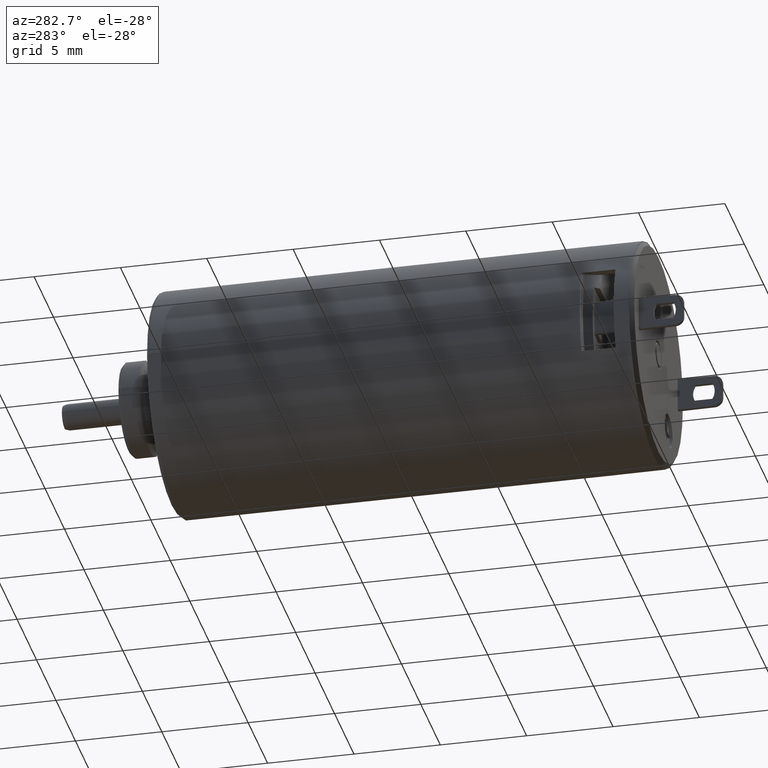
[diagram: clean part render]
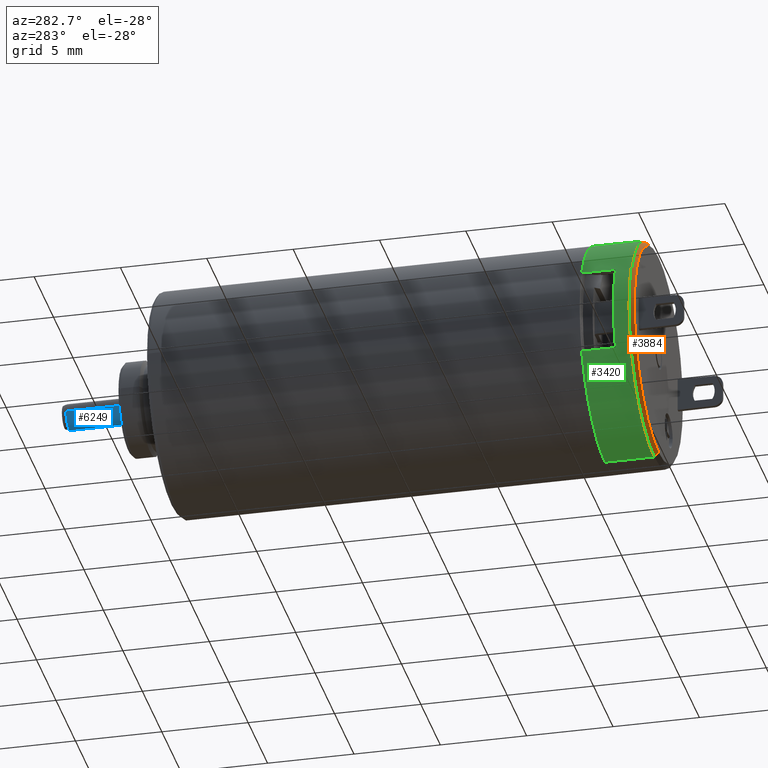
[diagram: same view with three faces highlighted in distinct colors, each labeled with its STEP entity id]
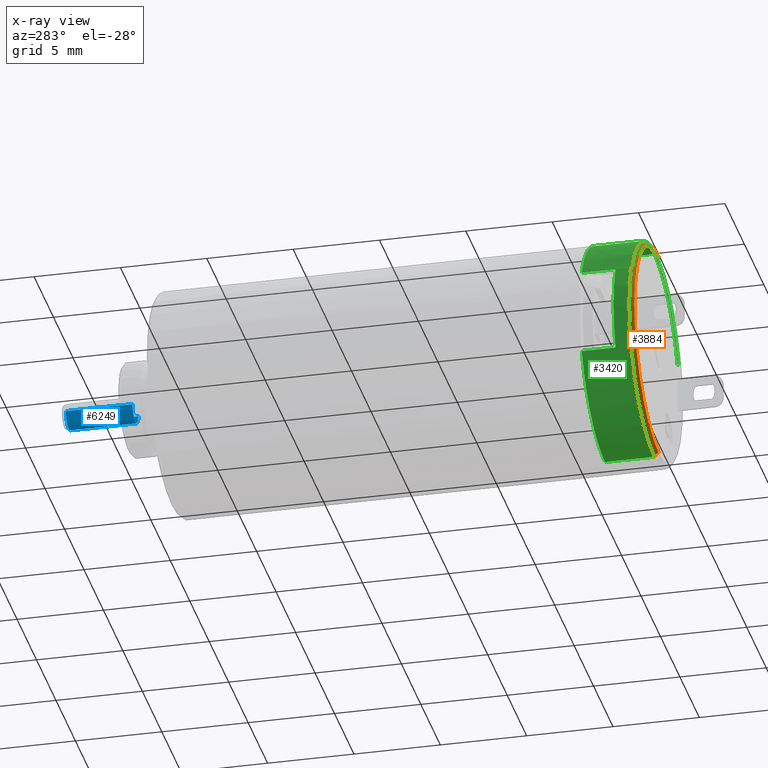
[diagram: x-ray of the same camera — body ghosted, the three highlighted faces saturated]
A machine part, auxiliary view with three faces highlighted in distinct colors.
The next image is the same camera in x-ray (body ghosted, the three faces saturated) — at least one of them is partly hidden behind the body in this view.
Their STEP definitions:

[orange] entity #3884 — the highlighted conical surface has half-angle 46.79 deg.
#597=CARTESIAN_POINT('',(0.E0,-3.44E1,0.E0));
#598=DIRECTION('',(0.E0,-1.E0,0.E0));
#599=DIRECTION('',(0.E0,0.E0,1.E0));
#600=AXIS2_PLACEMENT_3D('',#597,#598,#599);
#617=CARTESIAN_POINT('',(0.E0,-3.42E1,0.E0));
#618=DIRECTION('',(0.E0,1.E0,0.E0));
#619=DIRECTION('',(-9.215546591161E-1,0.E0,3.882486448932E-1));
#620=AXIS2_PLACEMENT_3D('',#617,#618,#619);
#622=CARTESIAN_POINT('',(0.E0,-3.415E1,0.E0));
#623=DIRECTION('',(0.E0,-1.E0,0.E0));
#624=DIRECTION('',(-9.229530266967E-1,0.E0,3.849126011334E-1));
#625=AXIS2_PLACEMENT_3D('',#622,#623,#624);
#627=CARTESIAN_POINT('',(-5.936446798026E0,-3.42E1,2.501010007399E0));
#628=CARTESIAN_POINT('',(-5.942873613894E0,-3.419451083336E1,2.500805681850E0));
#629=CARTESIAN_POINT('',(-5.955749284419E0,-3.418348790205E1,2.500458364662E0));
#630=CARTESIAN_POINT('',(-5.975133783294E0,-3.416681540997E1,2.500123178279E0));
#631=CARTESIAN_POINT('',(-5.988091529926E0,-3.415561914746E1,2.500024928229E0));
#632=CARTESIAN_POINT('',(-5.994579908395E0,-3.415E1,2.500007344362E0));
#1935=DIRECTION('',(0.E0,-6.846738080152E-1,7.288496255182E-1));
#1936=VECTOR('',#1935,3.651373793964E-1);
#1937=CARTESIAN_POINT('',(0.E0,-3.415E1,-6.495E0));
#1938=LINE('',#1937,#1936);
#1939=DIRECTION('',(0.E0,-6.846738080152E-1,-7.288496255182E-1));
#1940=VECTOR('',#1939,2.921099035171E-1);
#1941=CARTESIAN_POINT('',(0.E0,-3.42E1,6.441773951553E0));
#1942=LINE('',#1941,#1940);
#2735=CARTESIAN_POINT('',(0.E0,-3.415E1,-6.495E0));
#2736=CARTESIAN_POINT('',(0.E0,-3.44E1,-6.228869757764E0));
#2737=VERTEX_POINT('',#2735);
#2738=VERTEX_POINT('',#2736);
#2739=CARTESIAN_POINT('',(0.E0,-3.44E1,6.228869757764E0));
#2740=VERTEX_POINT('',#2739);
#2780=CARTESIAN_POINT('',(-5.936446798026E0,-3.42E1,2.501010007399E0));
#2782=VERTEX_POINT('',#2780);
#2787=CARTESIAN_POINT('',(0.E0,-3.42E1,6.441773951553E0));
#2788=VERTEX_POINT('',#2787);
#2789=VERTEX_POINT('',#632);
#3867=CARTESIAN_POINT('',(0.E0,-3.4275E1,0.E0));
#3868=DIRECTION('',(0.E0,1.E0,0.E0));
#3869=DIRECTION('',(0.E0,0.E0,-1.E0));
#3870=AXIS2_PLACEMENT_3D('',#3867,#3868,#3869);
#3871=CONICAL_SURFACE('',#3870,6.361934878882E0,4.679004060379E1);
#3873=ORIENTED_EDGE('',*,*,#3872,.T.);
#3875=ORIENTED_EDGE('',*,*,#3874,.T.);
#3876=ORIENTED_EDGE('',*,*,#3830,.T.);
#3878=ORIENTED_EDGE('',*,*,#3877,.F.);
#3879=ORIENTED_EDGE('',*,*,#3402,.F.);
#3881=ORIENTED_EDGE('',*,*,#3880,.F.);
#3882=EDGE_LOOP('',(#3873,#3875,#3876,#3878,#3879,#3881));
#3883=FACE_OUTER_BOUND('',#3882,.F.);
#3884=ADVANCED_FACE('',(#3883),#3871,.T.);
#601=CIRCLE('',#600,6.228869757764E0);
#621=CIRCLE('',#620,6.441773951553E0);
#626=CIRCLE('',#625,6.495E0);
#633=B_SPLINE_CURVE_WITH_KNOTS('',3,(#627,#628,#629,#630,#631,#632),
.UNSPECIFIED.,.F.,.F.,(4,1,1,4),(0.E0,3.333333333333E-1,6.666666666667E-1,1.E0),
.UNSPECIFIED.);
#3402=EDGE_CURVE('',#2789,#2737,#626,.T.);
#3830=EDGE_CURVE('',#2740,#2738,#601,.T.);
#3872=EDGE_CURVE('',#2782,#2788,#621,.T.);
#3874=EDGE_CURVE('',#2788,#2740,#1942,.T.);
#3877=EDGE_CURVE('',#2737,#2738,#1938,.T.);
#3880=EDGE_CURVE('',#2782,#2789,#633,.T.);

[blue] entity #6249 — the highlighted cylindrical surface (edge-blend (fillet) strip) has radius 0.75 mm, axis along (0, 1, 0).
#2410=CARTESIAN_POINT('',(0.E0,-4.106279815482E0,0.E0));
#2411=DIRECTION('',(0.E0,-1.E0,0.E0));
#2412=DIRECTION('',(-1.E0,0.E0,0.E0));
#2413=AXIS2_PLACEMENT_3D('',#2410,#2411,#2412);
#2428=CARTESIAN_POINT('',(0.E0,-2.5E-1,0.E0));
#2429=DIRECTION('',(0.E0,-1.E0,0.E0));
#2430=DIRECTION('',(-1.E0,0.E0,0.E0));
#2431=AXIS2_PLACEMENT_3D('',#2428,#2429,#2430);
#2433=DIRECTION('',(-3.512398341793E-10,-1.E0,-2.468116598864E-9));
#2434=VECTOR('',#2433,3.856279819778E0);
#2435=CARTESIAN_POINT('',(-7.499999986456E-1,-2.499999957042E-1,
9.517748294293E-9));
#2436=LINE('',#2435,#2434);
#2437=DIRECTION('',(3.512394886992E-10,-1.E0,2.468116637208E-9));
#2438=VECTOR('',#2437,3.856279819778E0);
#2439=CARTESIAN_POINT('',(7.499999986456E-1,-2.499999957042E-1,
-9.517748442155E-9));
#2440=LINE('',#2439,#2438);
#2499=CARTESIAN_POINT('',(-7.500000000001E-1,-4.106279815482E0,0.E0));
#2500=CARTESIAN_POINT('',(7.500000000001E-1,-4.106279815482E0,0.E0));
#2501=VERTEX_POINT('',#2499);
#2502=VERTEX_POINT('',#2500);
#2519=CARTESIAN_POINT('',(-7.500000000001E-1,-2.5E-1,0.E0));
#2520=CARTESIAN_POINT('',(7.500000000001E-1,-2.5E-1,0.E0));
#2521=VERTEX_POINT('',#2519);
#2522=VERTEX_POINT('',#2520);
#6238=CARTESIAN_POINT('',(0.E0,-3.2865E1,0.E0));
#6239=DIRECTION('',(0.E0,1.E0,0.E0));
#6240=DIRECTION('',(1.E0,0.E0,0.E0));
#6241=AXIS2_PLACEMENT_3D('',#6238,#6239,#6240);
#6242=CYLINDRICAL_SURFACE('',#6241,7.500000000001E-1);
#6243=ORIENTED_EDGE('',*,*,#6229,.F.);
#6244=ORIENTED_EDGE('',*,*,#6204,.T.);
#6245=ORIENTED_EDGE('',*,*,#6189,.T.);
#6246=ORIENTED_EDGE('',*,*,#6201,.F.);
#6247=EDGE_LOOP('',(#6243,#6244,#6245,#6246));
#6248=FACE_OUTER_BOUND('',#6247,.F.);
#6249=ADVANCED_FACE('',(#6248),#6242,.T.);
#2414=CIRCLE('',#2413,7.500000000001E-1);
#2432=CIRCLE('',#2431,7.500000000001E-1);
#6189=EDGE_CURVE('',#2501,#2502,#2414,.T.);
#6201=EDGE_CURVE('',#2522,#2502,#2440,.T.);
#6204=EDGE_CURVE('',#2521,#2501,#2436,.T.);
#6229=EDGE_CURVE('',#2521,#2522,#2432,.T.);

[green] entity #3420 — the highlighted cylindrical surface (partial cylindrical patch) has radius 6.495 mm, axis along (0, -1, 0).
#64=CARTESIAN_POINT('',(0.E0,-3.13E1,0.E0));
#65=DIRECTION('',(0.E0,-1.E0,0.E0));
#66=DIRECTION('',(-9.229530266967E-1,0.E0,-3.849126011334E-1));
#67=AXIS2_PLACEMENT_3D('',#64,#65,#66);
#69=CARTESIAN_POINT('',(0.E0,-3.13E1,0.E0));
#70=DIRECTION('',(0.E0,-1.E0,0.E0));
#71=DIRECTION('',(-2.213100243127E-1,0.E0,9.752035034488E-1));
#72=AXIS2_PLACEMENT_3D('',#69,#70,#71);
#184=DIRECTION('',(0.E0,-1.E0,0.E0));
#185=VECTOR('',#184,2.85E0);
#186=CARTESIAN_POINT('',(0.E0,-3.13E1,-6.495E0));
#187=LINE('',#186,#185);
#188=CARTESIAN_POINT('',(0.E0,-3.415E1,0.E0));
#189=DIRECTION('',(0.E0,-1.E0,0.E0));
#190=DIRECTION('',(9.229530266967E-1,0.E0,3.849126011334E-1));
#191=AXIS2_PLACEMENT_3D('',#188,#189,#190);
#193=DIRECTION('',(0.E0,-1.E0,0.E0));
#194=VECTOR('',#193,9.E-1);
#195=CARTESIAN_POINT('',(0.E0,-3.325E1,6.495E0));
#196=LINE('',#195,#194);
#247=DIRECTION('',(0.E0,1.E0,0.E0));
#248=VECTOR('',#247,1.E-1);
#249=CARTESIAN_POINT('',(-1.437295126845E0,-3.225E1,6.334159656692E0));
#250=LINE('',#249,#248);
#255=DIRECTION('',(-1.134810627400E-4,-9.999999708974E-1,-2.129017857122E-4));
#256=VECTOR('',#255,1.000000029103E0);
#257=CARTESIAN_POINT('',(-1.437295126845E0,-3.225E1,6.334159656692E0));
#258=LINE('',#257,#256);
#259=CARTESIAN_POINT('',(0.E0,-3.325E1,0.E0));
#260=DIRECTION('',(0.E0,-1.E0,0.E0));
#261=DIRECTION('',(0.E0,0.E0,1.E0));
#262=AXIS2_PLACEMENT_3D('',#259,#260,#261);
#264=DIRECTION('',(0.E0,1.E0,-3.552713678801E-14));
#265=VECTOR('',#264,4.999999999999E-2);
#266=CARTESIAN_POINT('',(5.994579908395E0,-3.42E1,2.500007344362E0));
#267=LINE('',#266,#265);
#268=DIRECTION('',(1.896644736119E-6,-9.999999999742E-1,-6.933937895314E-6));
#269=VECTOR('',#268,8.500000000220E-1);
#270=CARTESIAN_POINT('',(-5.994579908395E0,-3.13E1,-2.500007344362E0));
#271=LINE('',#270,#269);
#272=DIRECTION('',(1.819462501241E-5,-9.999999998297E-1,-3.077316698716E-6));
#273=VECTOR('',#272,1.000000000170E-1);
#274=CARTESIAN_POINT('',(-5.994578296247E0,-3.215E1,-2.500013238209E0));
#275=LINE('',#274,#273);
#276=DIRECTION('',(-3.431610526319E-6,-9.999999999749E-1,6.201578880049E-6));
#277=VECTOR('',#276,1.000000000025E0);
#278=CARTESIAN_POINT('',(-5.994576476785E0,-3.225E1,-2.500013545941E0));
#279=LINE('',#278,#277);
#280=CARTESIAN_POINT('',(0.E0,-3.325E1,0.E0));
#281=DIRECTION('',(0.E0,-1.E0,0.E0));
#282=DIRECTION('',(-9.229530266967E-1,0.E0,3.849126011334E-1));
#283=AXIS2_PLACEMENT_3D('',#280,#281,#282);
#285=DIRECTION('',(1.335071311406E-4,-9.999999597196E-1,2.504726862776E-4));
#286=VECTOR('',#285,8.500000342383E-1);
#287=CARTESIAN_POINT('',(-1.437408607911E0,-3.13E1,6.333946754900E0));
#288=LINE('',#287,#286);
#622=CARTESIAN_POINT('',(0.E0,-3.415E1,0.E0));
#623=DIRECTION('',(0.E0,-1.E0,0.E0));
#624=DIRECTION('',(-9.229530266967E-1,0.E0,3.849126011334E-1));
#625=AXIS2_PLACEMENT_3D('',#622,#623,#624);
#632=CARTESIAN_POINT('',(-5.994579908395E0,-3.415E1,2.500007344362E0));
#639=CARTESIAN_POINT('',(0.E0,-3.42E1,0.E0));
#640=DIRECTION('',(0.E0,1.E0,0.E0));
#641=DIRECTION('',(-9.229530266967E-1,0.E0,3.849126011334E-1));
#642=AXIS2_PLACEMENT_3D('',#639,#640,#641);
#649=DIRECTION('',(0.E0,1.E0,-3.552713678801E-14));
#650=VECTOR('',#649,4.999999999999E-2);
#651=CARTESIAN_POINT('',(-5.994579908395E0,-3.42E1,2.500007344362E0));
#652=LINE('',#651,#650);
#657=DIRECTION('',(0.E0,-1.E0,0.E0));
#658=VECTOR('',#657,1.95E0);
#659=CARTESIAN_POINT('',(-5.994579908395E0,-3.13E1,2.500007344362E0));
#660=LINE('',#659,#658);
#1923=CARTESIAN_POINT('',(5.994579908395E0,-3.415E1,2.500007344362E0));
#2735=CARTESIAN_POINT('',(0.E0,-3.415E1,-6.495E0));
#2737=VERTEX_POINT('',#2735);
#2773=CARTESIAN_POINT('',(0.E0,-3.13E1,-6.495E0));
#2774=VERTEX_POINT('',#2773);
#2779=CARTESIAN_POINT('',(-5.994579908395E0,-3.42E1,2.500007344362E0));
#2781=VERTEX_POINT('',#2779);
#2784=CARTESIAN_POINT('',(5.994579908395E0,-3.42E1,2.500007344362E0));
#2786=VERTEX_POINT('',#2784);
#2789=VERTEX_POINT('',#632);
#2790=VERTEX_POINT('',#1923);
#2827=CARTESIAN_POINT('',(0.E0,-3.415E1,6.495E0));
#2828=VERTEX_POINT('',#2827);
#2837=CARTESIAN_POINT('',(-5.994579908395E0,-3.325E1,2.500007344362E0));
#2838=CARTESIAN_POINT('',(-5.994579908395E0,-3.325E1,-2.500007344362E0));
#2839=VERTEX_POINT('',#2837);
#2840=VERTEX_POINT('',#2838);
#2842=CARTESIAN_POINT('',(0.E0,-3.325E1,6.495E0));
#2844=VERTEX_POINT('',#2842);
#2918=CARTESIAN_POINT('',(-5.994577369718E0,-3.225E1,-2.500007351243E0));
#2920=VERTEX_POINT('',#2918);
#2922=CARTESIAN_POINT('',(-1.437408607911E0,-3.325E1,6.333946754900E0));
#2923=VERTEX_POINT('',#2922);
#2933=CARTESIAN_POINT('',(-5.994578296247E0,-3.215E1,-2.500013238209E0));
#2934=VERTEX_POINT('',#2933);
#2935=CARTESIAN_POINT('',(-5.994579908395E0,-3.13E1,-2.500007344362E0));
#2936=VERTEX_POINT('',#2935);
#2950=CARTESIAN_POINT('',(-1.437408607911E0,-3.13E1,6.333946754900E0));
#2951=VERTEX_POINT('',#2950);
#2954=CARTESIAN_POINT('',(-5.994579908395E0,-3.13E1,2.500007344362E0));
#2955=VERTEX_POINT('',#2954);
#2964=CARTESIAN_POINT('',(-1.437295126845E0,-3.225E1,6.334159656692E0));
#2965=VERTEX_POINT('',#2964);
#2966=CARTESIAN_POINT('',(-1.437295126845E0,-3.215E1,6.334159656692E0));
#2967=VERTEX_POINT('',#2966);
#3385=CARTESIAN_POINT('',(0.E0,-3.1145E1,0.E0));
#3386=DIRECTION('',(0.E0,-1.E0,0.E0));
#3387=DIRECTION('',(0.E0,0.E0,1.E0));
#3388=AXIS2_PLACEMENT_3D('',#3385,#3386,#3387);
#3389=CYLINDRICAL_SURFACE('',#3388,6.495E0);
#3390=ORIENTED_EDGE('',*,*,#3369,.F.);
#3391=ORIENTED_EDGE('',*,*,#3367,.T.);
#3393=ORIENTED_EDGE('',*,*,#3392,.F.);
#3394=ORIENTED_EDGE('',*,*,#3287,.T.);
#3395=ORIENTED_EDGE('',*,*,#3285,.F.);
#3397=ORIENTED_EDGE('',*,*,#3396,.F.);
#3399=ORIENTED_EDGE('',*,*,#3398,.F.);
#3401=ORIENTED_EDGE('',*,*,#3400,.T.);
#3403=ORIENTED_EDGE('',*,*,#3402,.T.);
#3404=ORIENTED_EDGE('',*,*,#3281,.F.);
#3405=ORIENTED_EDGE('',*,*,#3135,.F.);
#3407=ORIENTED_EDGE('',*,*,#3406,.T.);
#3409=ORIENTED_EDGE('',*,*,#3408,.T.);
#3411=ORIENTED_EDGE('',*,*,#3410,.T.);
#3413=ORIENTED_EDGE('',*,*,#3412,.F.);
#3415=ORIENTED_EDGE('',*,*,#3414,.F.);
#3416=ORIENTED_EDGE('',*,*,#3155,.F.);
#3417=ORIENTED_EDGE('',*,*,#3371,.T.);
#3418=EDGE_LOOP('',(#3390,#3391,#3393,#3394,#3395,#3397,#3399,#3401,#3403,#3404,
#3405,#3407,#3409,#3411,#3413,#3415,#3416,#3417));
#3419=FACE_OUTER_BOUND('',#3418,.F.);
#3420=ADVANCED_FACE('',(#3419),#3389,.T.);
#68=CIRCLE('',#67,6.495E0);
#73=CIRCLE('',#72,6.495E0);
#192=CIRCLE('',#191,6.495E0);
#263=CIRCLE('',#262,6.495E0);
#284=CIRCLE('',#283,6.495E0);
#626=CIRCLE('',#625,6.495E0);
#643=CIRCLE('',#642,6.495E0);
#3135=EDGE_CURVE('',#2936,#2774,#68,.T.);
#3155=EDGE_CURVE('',#2951,#2955,#73,.T.);
#3281=EDGE_CURVE('',#2774,#2737,#187,.T.);
#3285=EDGE_CURVE('',#2790,#2828,#192,.T.);
#3287=EDGE_CURVE('',#2844,#2828,#196,.T.);
#3367=EDGE_CURVE('',#2965,#2923,#258,.T.);
#3369=EDGE_CURVE('',#2965,#2967,#250,.T.);
#3371=EDGE_CURVE('',#2951,#2967,#288,.T.);
#3392=EDGE_CURVE('',#2844,#2923,#263,.T.);
#3396=EDGE_CURVE('',#2786,#2790,#267,.T.);
#3398=EDGE_CURVE('',#2781,#2786,#643,.T.);
#3400=EDGE_CURVE('',#2781,#2789,#652,.T.);
#3402=EDGE_CURVE('',#2789,#2737,#626,.T.);
#3406=EDGE_CURVE('',#2936,#2934,#271,.T.);
#3408=EDGE_CURVE('',#2934,#2920,#275,.T.);
#3410=EDGE_CURVE('',#2920,#2840,#279,.T.);
#3412=EDGE_CURVE('',#2839,#2840,#284,.T.);
#3414=EDGE_CURVE('',#2955,#2839,#660,.T.);